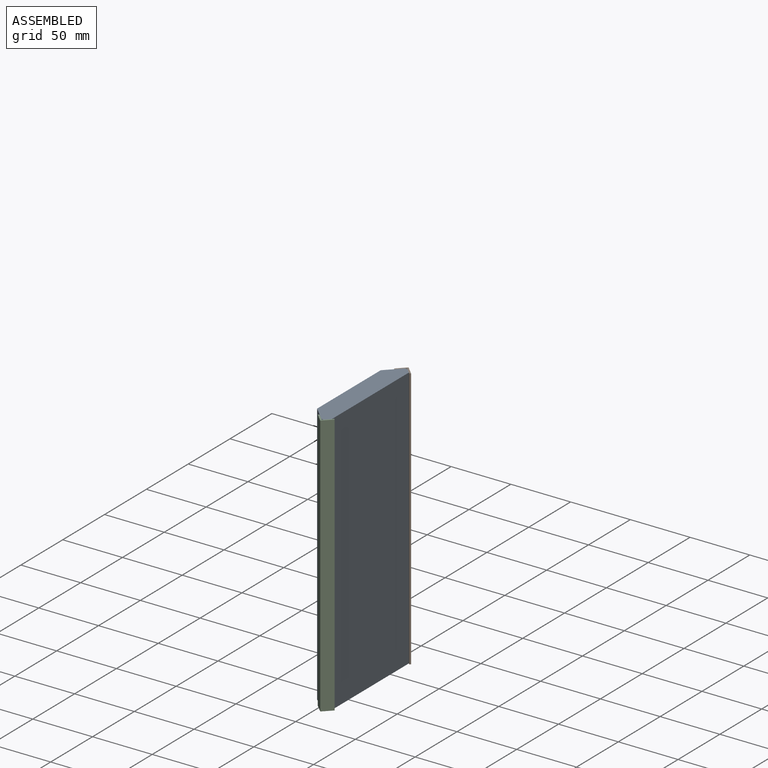
[diagram: assembled view]
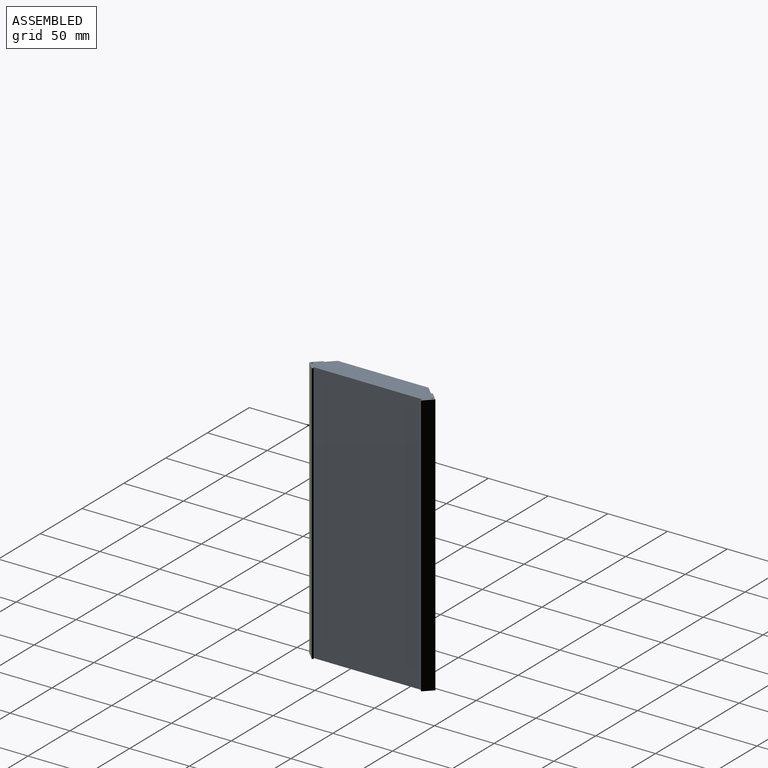
[diagram: assembled view, second angle]
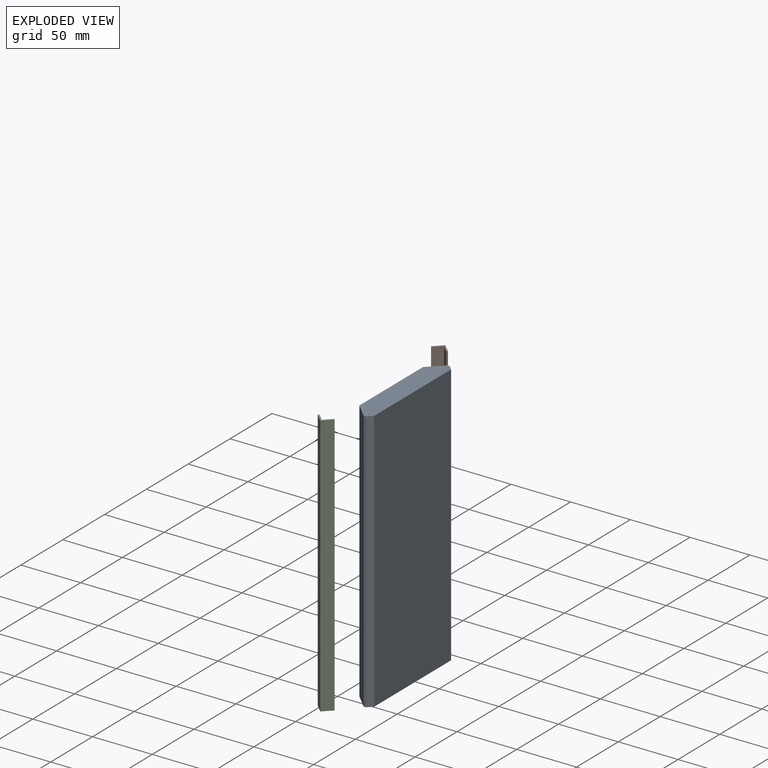
[diagram: exploded view]
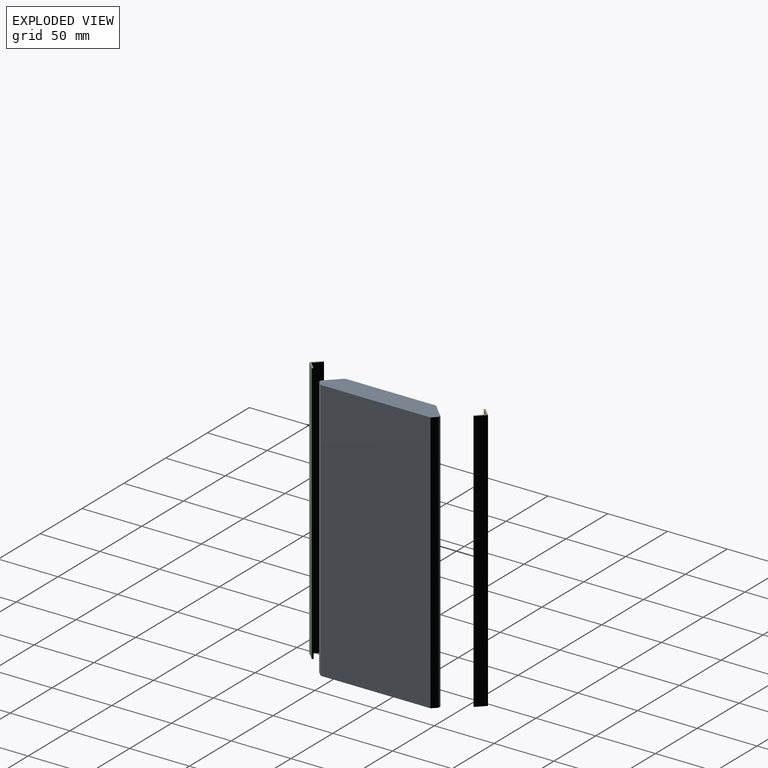
[diagram: exploded view, second angle]
ASSEMBLY  parts=3 mates=6
PART A: 10 faces, bbox 18x220x100 mm
  f0: plane 220x92mm, normal (-1,0,0), area 20240mm2, adj f1,f7,f8,f9
  f1: plane 220x4mm, normal (-0.71,0,-0.71), area 1244.5mm2, adj f0,f2,f8,f9
  f2: plane 220x2mm, normal (0,0,-1), area 440mm2, adj f1,f3,f8,f9
  f3: plane 220x12mm, normal (0.71,0,-0.71), area 3733.5mm2, adj f2,f4,f8,f9
  f4: plane 220x76mm, normal (1,0,0), area 16720mm2, adj f3,f5,f8,f9
  f5: plane 220x12mm, normal (0.71,0,0.71), area 3733.5mm2, adj f4,f6,f8,f9
  f6: plane 220x2mm, normal (0,0,1), area 440mm2, adj f5,f7,f8,f9
  f7: plane 220x4mm, normal (-0.71,0,0.71), area 1244.5mm2, adj f0,f6,f8,f9
  f8: plane 100x18mm, normal (0,-1,0), area 1640mm2, adj f0,f1,f2,f3,f4,f5,f6,f7
  f9: plane 100x18mm, normal (0,1,0), area 1640mm2, adj f0,f1,f2,f3,f4,f5,f6,f7
PART B: 8 faces, bbox 14.1x220x8 mm
  f0: plane 220x0.88mm, normal (-0.71,0,-0.71), area 275mm2, adj f1,f5,f6,f7
  f1: plane 220x6.19mm, normal (0.71,0,-0.71), area 1925mm2, adj f0,f2,f6,f7
  f2: plane 220x6.19mm, normal (-0.71,0,-0.71), area 1925mm2, adj f1,f3,f6,f7
  f3: plane 220x0.88mm, normal (0.71,0,-0.71), area 275mm2, adj f2,f4,f6,f7
  f4: plane 220x7.07mm, normal (0.71,0,0.71), area 2200mm2, adj f3,f5,f6,f7
  f5: plane 220x7.07mm, normal (-0.71,0,0.71), area 2200mm2, adj f0,f4,f6,f7
  f6: plane 14.14x7.96mm, normal (0,-1,0), area 23.4mm2, adj f0,f1,f2,f3,f4,f5
  f7: plane 14.14x7.96mm, normal (0,1,0), area 23.4mm2, adj f0,f1,f2,f3,f4,f5
PART C: same geometry as B
PLACE A rot(axis=(0,-0.71,-0.71),180deg) t=(82.31,-101.69,169.08)mm fixed
PLACE B rot(axis=(-1,0,0),90deg) t=(52.2,-94.72,-50.92)mm
PLACE C rot(axis=(1,0,0),90deg) t=(52.2,-66.53,169.08)mm
MATE planar B.f7 <-> A.f8  axis (0,0,-1) through (9,-32.04,-50.92)mm
MATE planar C.f2 <-> A.f1  axis (-0.71,0.71,0) through (12.09,-128.53,59.08)mm
MATE planar B.f2 <-> A.f7  axis (-0.71,-0.71,0) through (12.09,-32.72,59.08)mm
MATE planar C.f6 <-> A.f8  axis (0,0,-1) through (9,-131.62,-50.92)mm
MATE planar B.f1 <-> A.f5  axis (0.71,-0.71,0) through (5.9,-32.72,59.08)mm
MATE planar C.f1 <-> A.f3  axis (0.71,0.71,0) through (5.9,-128.53,59.08)mm
